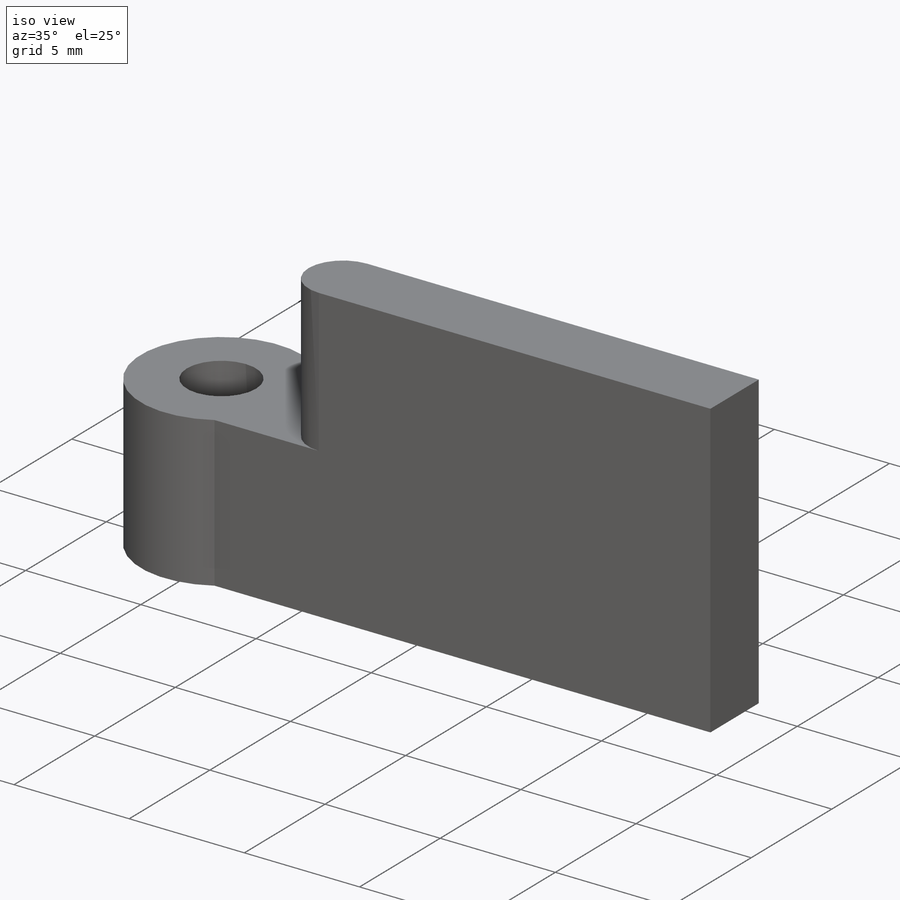
[diagram: iso view]
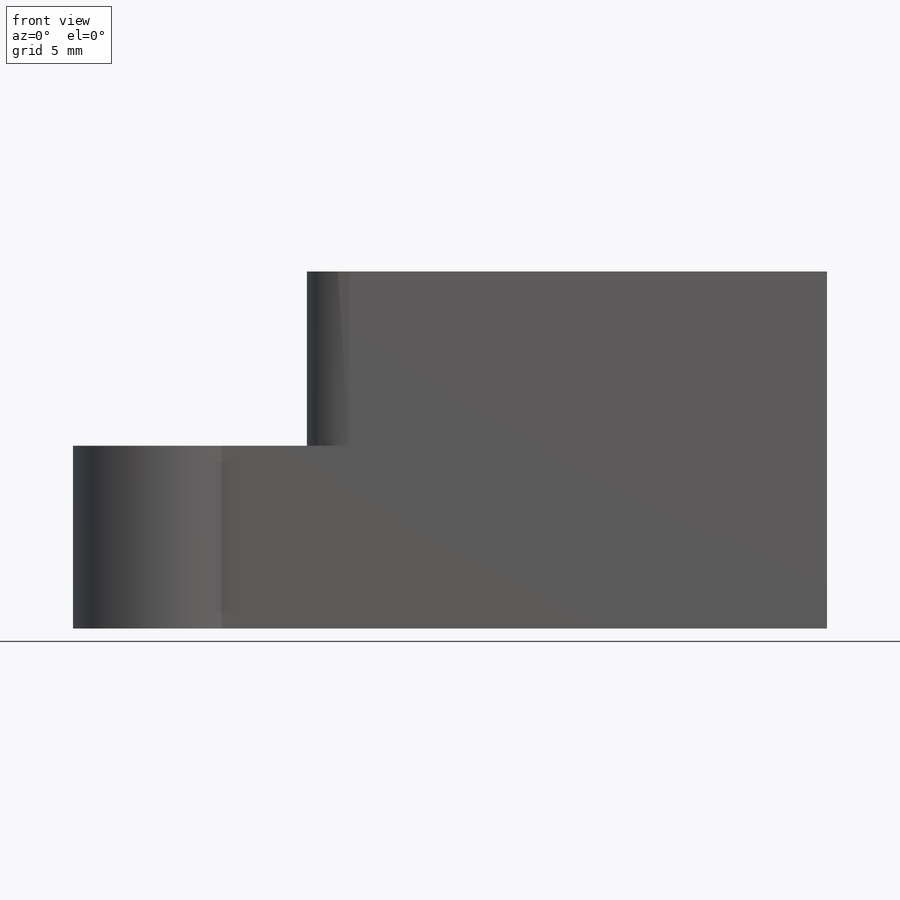
[diagram: front view]
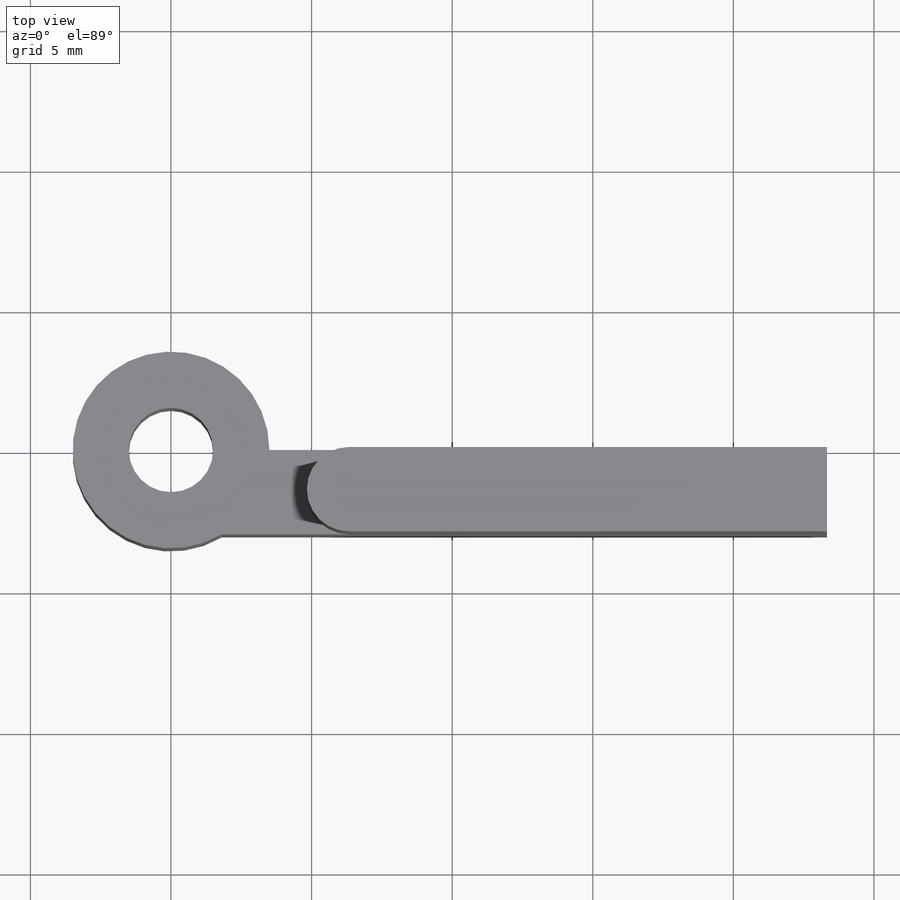
[diagram: top view]
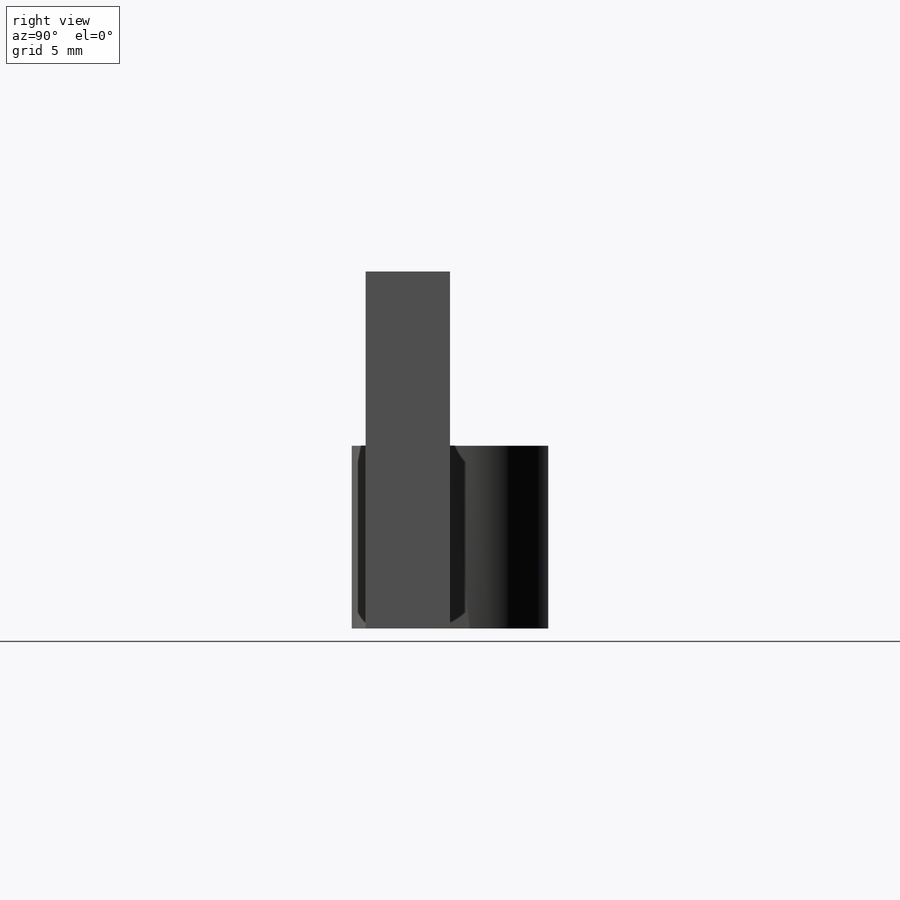
[diagram: right view]
SOLIDWORKS PART (.sldprt)
format: sldprt  version: not decoded by parser v0  size: 206,848 bytes
history: native  units: mm
features: sketch x6, cut_extrude x4, extrude x2, material x1, plane x1, mirror x1, delete_body x1, fillet x1 (+11 scaffold rows collapsed)
feature tree (28):
  scaffold x11  (default folders/planes/origin — collapsed)
  material  "Material <not specified>"
  sketch  "Sketch1"  dims[D1=7.0mm D2=3.0mm D3=1.0mm]
  extrude  "Boss-Extrude1"  Depth=12.7mm
  sketch  "Sketch2"  dims[D1=17.0mm]
  cut_extrude  "Cut-Extrude1"  [1 undecoded]
  sketch  "Sketch3"  dims[D1=3.0mm]
  cut_extrude  "Cut-Extrude2"  [1 undecoded]
  plane  "Plane1"  Offset=5mm
  mirror  "Mirror1"
  delete_body  "Body-Delete1"
  sketch  "Sketch4"  dims[D1=4.0mm]
  cut_extrude  "Cut-Extrude3"  Depth=10mm
  sketch  "Sketch5"  dims[D1=0.5mm D2=2.0mm]
  extrude  "Boss-Extrude2"  [1 undecoded]
  fillet  "Fillet1"  Radius=3.175mm
  sketch  "Sketch6"
  cut_extrude  "Cut-Extrude4"  Depth=1.5mm
decode coverage: 9 of 15 modeling features carry decoded parameters
note: 3 parameter values undecoded
summary: no parameter record found for 3 features
note: suppression state not decoded; provenance and decode notes live in map.json
